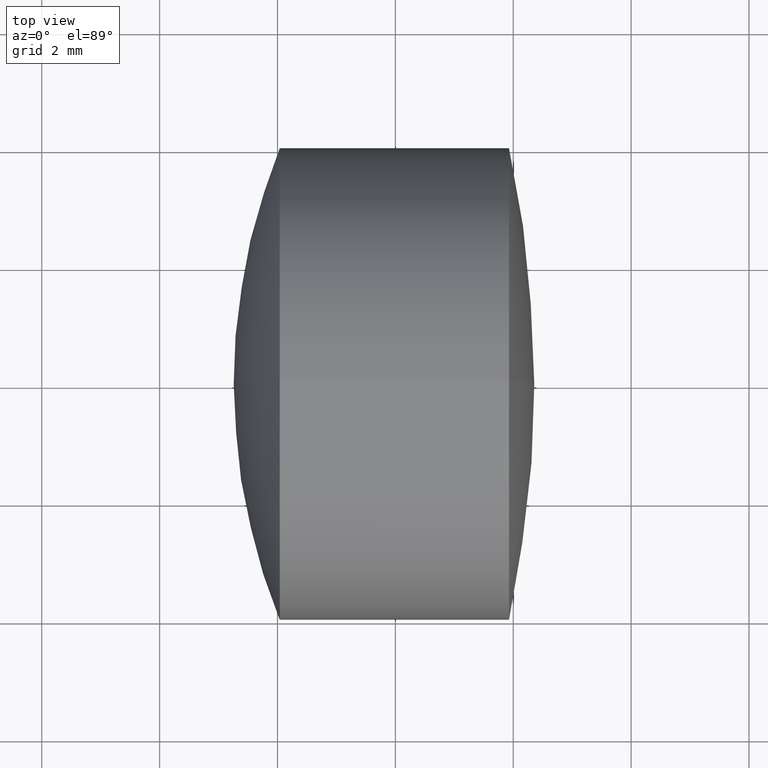
[diagram: clean part render]
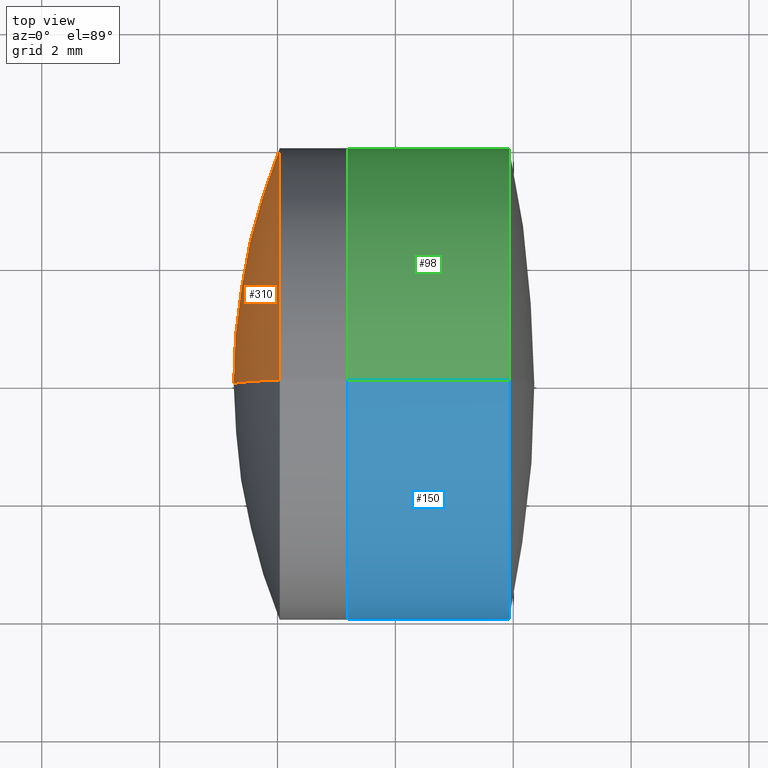
[diagram: same view with three faces highlighted in distinct colors, each labeled with its STEP entity id]
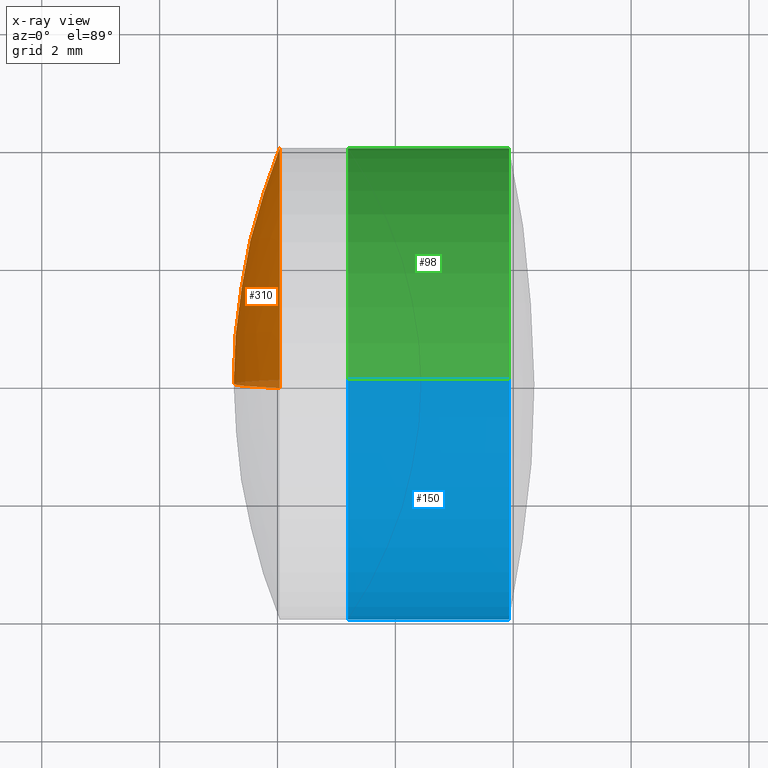
[diagram: x-ray of the same camera — body ghosted, the three highlighted faces saturated]
A machine part, top view with three faces highlighted in distinct colors.
The next image is the same camera in x-ray (body ghosted, the three faces saturated) — at least one of them is partly hidden behind the body in this view.
Their STEP definitions:

[orange] entity #310 — the highlighted spherical surface has radius 10.642 mm.
#7 = DIRECTION ( 'NONE',  ( 0.0000000000000000000, 0.0000000000000000000, 1.000000000000000000 ) ) ;
#9 = DIRECTION ( 'NONE',  ( -0.0000000000000000000, 1.000000000000000000, 1.224646799147353200E-016 ) ) ;
#13 = ORIENTED_EDGE ( 'NONE', *, *, #90, .F. ) ;
#16 = SPHERICAL_SURFACE ( 'NONE', #197, 10.64199999999999900 ) ;
#35 = CARTESIAN_POINT ( 'NONE',  ( 7.898824329195884200, 0.0000000000000000000, -4.193262327932864000E-018 ) ) ;
#38 = AXIS2_PLACEMENT_3D ( 'NONE', #41, #199, #7 ) ;
#41 = CARTESIAN_POINT ( 'NONE',  ( -1.962826851007154500, 0.0000000000000000000, 0.0000000000000000000 ) ) ;
#48 = CIRCLE ( 'NONE', #271, 10.64199999999999900 ) ;
#50 = VERTEX_POINT ( 'NONE', #301 ) ;
#77 = CARTESIAN_POINT ( 'NONE',  ( -1.962826851007154500, 0.0000000000000000000, 3.999999999999998200 ) ) ;
#80 = EDGE_CURVE ( 'NONE', #222, #50, #153, .T. ) ;
#84 = DIRECTION ( 'NONE',  ( 0.0000000000000000000, -1.224646799147353000E-016, 1.000000000000000000 ) ) ;
#87 = DIRECTION ( 'NONE',  ( 0.0000000000000000000, 1.000000000000000000, 0.0000000000000000000 ) ) ;
#90 = EDGE_CURVE ( 'NONE', #222, #315, #100, .T. ) ;
#100 = CIRCLE ( 'NONE', #346, 10.64199999999999900 ) ;
#139 = DIRECTION ( 'NONE',  ( 0.0000000000000000000, -1.000000000000000000, 0.0000000000000000000 ) ) ;
#153 = CIRCLE ( 'NONE', #38, 4.000000000000000000 ) ;
#163 = EDGE_LOOP ( 'NONE', ( #292, #198, #13 ) ) ;
#164 = FACE_OUTER_BOUND ( 'NONE', #163, .T. ) ;
#197 = AXIS2_PLACEMENT_3D ( 'NONE', #35, #87, #247 ) ;
#198 = ORIENTED_EDGE ( 'NONE', *, *, #265, .T. ) ;
#199 = DIRECTION ( 'NONE',  ( -1.000000000000000000, -0.0000000000000000000, -0.0000000000000000000 ) ) ;
#205 = CARTESIAN_POINT ( 'NONE',  ( -2.743175670804114000, 0.0000000000000000000, 6.474412994983736900E-016 ) ) ;
#222 = VERTEX_POINT ( 'NONE', #77 ) ;
#247 = DIRECTION ( 'NONE',  ( 0.0000000000000000000, 0.0000000000000000000, 1.000000000000000000 ) ) ;
#265 = EDGE_CURVE ( 'NONE', #50, #315, #48, .T. ) ;
#266 = CARTESIAN_POINT ( 'NONE',  ( 7.898824329195884200, 0.0000000000000000000, -4.193262327932864000E-018 ) ) ;
#271 = AXIS2_PLACEMENT_3D ( 'NONE', #266, #9, #84 ) ;
#292 = ORIENTED_EDGE ( 'NONE', *, *, #80, .T. ) ;
#301 = CARTESIAN_POINT ( 'NONE',  ( -1.962826851007154500, 4.898587196589411800E-016, -3.999999999999998200 ) ) ;
#310 = ADVANCED_FACE ( 'NONE', ( #164 ), #16, .T. ) ;
#315 = VERTEX_POINT ( 'NONE', #205 ) ;
#324 = CARTESIAN_POINT ( 'NONE',  ( 7.898824329195884200, 0.0000000000000000000, -4.193262327932864000E-018 ) ) ;
#328 = DIRECTION ( 'NONE',  ( 0.0000000000000000000, 0.0000000000000000000, -1.000000000000000000 ) ) ;
#346 = AXIS2_PLACEMENT_3D ( 'NONE', #324, #139, #328 ) ;

[blue] entity #150 — the highlighted cylindrical surface (partial cylindrical patch) has radius 4 mm, axis along (-1, -0, -0).
#2 = CARTESIAN_POINT ( 'NONE',  ( -0.5519199926577972300, 0.0000000000000000000, 0.0000000000000000000 ) ) ;
#3 = AXIS2_PLACEMENT_3D ( 'NONE', #2, #330, #309 ) ;
#4 = DIRECTION ( 'NONE',  ( -1.000000000000000000, -0.0000000000000000000, -0.0000000000000000000 ) ) ;
#14 = DIRECTION ( 'NONE',  ( 0.0000000000000000000, 0.0000000000000000000, 1.000000000000000000 ) ) ;
#15 = CARTESIAN_POINT ( 'NONE',  ( -0.5519199926577972300, 0.0000000000000000000, 4.000000000000000900 ) ) ;
#17 = EDGE_CURVE ( 'NONE', #118, #256, #261, .T. ) ;
#28 = EDGE_CURVE ( 'NONE', #207, #118, #103, .T. ) ;
#32 = VECTOR ( 'NONE', #297, 1000.000000000000000 ) ;
#33 = CARTESIAN_POINT ( 'NONE',  ( -0.5519199926577972300, 4.898587196589413800E-016, -4.000000000000000900 ) ) ;
#39 = LINE ( 'NONE', #33, #32 ) ;
#52 = FACE_OUTER_BOUND ( 'NONE', #160, .T. ) ;
#53 = AXIS2_PLACEMENT_3D ( 'NONE', #267, #190, #14 ) ;
#64 = CYLINDRICAL_SURFACE ( 'NONE', #3, 4.000000000000000900 ) ;
#66 = DIRECTION ( 'NONE',  ( -1.000000000000000000, -0.0000000000000000000, -0.0000000000000000000 ) ) ;
#94 = ORIENTED_EDGE ( 'NONE', *, *, #17, .T. ) ;
#103 = CIRCLE ( 'NONE', #146, 4.000000000000000000 ) ;
#118 = VERTEX_POINT ( 'NONE', #259 ) ;
#134 = EDGE_CURVE ( 'NONE', #207, #195, #39, .T. ) ;
#146 = AXIS2_PLACEMENT_3D ( 'NONE', #320, #66, #272 ) ;
#150 = ADVANCED_FACE ( 'NONE', ( #52 ), #64, .T. ) ;
#160 = EDGE_LOOP ( 'NONE', ( #248, #228, #94, #211 ) ) ;
#167 = EDGE_CURVE ( 'NONE', #195, #256, #176, .T. ) ;
#176 = CIRCLE ( 'NONE', #53, 4.000000000000001800 ) ;
#187 = CARTESIAN_POINT ( 'NONE',  ( 1.927975114913448800, 4.898587196589413800E-016, -4.000000000000000000 ) ) ;
#190 = DIRECTION ( 'NONE',  ( -1.000000000000000000, -0.0000000000000000000, -0.0000000000000000000 ) ) ;
#195 = VERTEX_POINT ( 'NONE', #274 ) ;
#207 = VERTEX_POINT ( 'NONE', #187 ) ;
#211 = ORIENTED_EDGE ( 'NONE', *, *, #167, .F. ) ;
#228 = ORIENTED_EDGE ( 'NONE', *, *, #28, .T. ) ;
#248 = ORIENTED_EDGE ( 'NONE', *, *, #134, .F. ) ;
#256 = VERTEX_POINT ( 'NONE', #333 ) ;
#259 = CARTESIAN_POINT ( 'NONE',  ( 1.927975114913448800, 0.0000000000000000000, 4.000000000000000000 ) ) ;
#261 = LINE ( 'NONE', #15, #344 ) ;
#267 = CARTESIAN_POINT ( 'NONE',  ( -0.8043704380087720600, 0.0000000000000000000, 0.0000000000000000000 ) ) ;
#272 = DIRECTION ( 'NONE',  ( 0.0000000000000000000, 0.0000000000000000000, 1.000000000000000000 ) ) ;
#274 = CARTESIAN_POINT ( 'NONE',  ( -0.8043704380087720600, 4.898587196589415800E-016, -4.000000000000001800 ) ) ;
#297 = DIRECTION ( 'NONE',  ( -1.000000000000000000, -0.0000000000000000000, -0.0000000000000000000 ) ) ;
#309 = DIRECTION ( 'NONE',  ( 0.0000000000000000000, 0.0000000000000000000, 1.000000000000000000 ) ) ;
#320 = CARTESIAN_POINT ( 'NONE',  ( 1.927975114913448800, 0.0000000000000000000, 0.0000000000000000000 ) ) ;
#330 = DIRECTION ( 'NONE',  ( -1.000000000000000000, -0.0000000000000000000, -0.0000000000000000000 ) ) ;
#333 = CARTESIAN_POINT ( 'NONE',  ( -0.8043704380087720600, 0.0000000000000000000, 4.000000000000001800 ) ) ;
#344 = VECTOR ( 'NONE', #4, 1000.000000000000000 ) ;

[green] entity #98 — the highlighted cylindrical surface (partial cylindrical patch) has radius 4 mm, axis along (-1, -0, -0).
#4 = DIRECTION ( 'NONE',  ( -1.000000000000000000, -0.0000000000000000000, -0.0000000000000000000 ) ) ;
#15 = CARTESIAN_POINT ( 'NONE',  ( -0.5519199926577972300, 0.0000000000000000000, 4.000000000000000900 ) ) ;
#17 = EDGE_CURVE ( 'NONE', #118, #256, #261, .T. ) ;
#22 = AXIS2_PLACEMENT_3D ( 'NONE', #40, #92, #162 ) ;
#25 = EDGE_CURVE ( 'NONE', #118, #207, #69, .T. ) ;
#32 = VECTOR ( 'NONE', #297, 1000.000000000000000 ) ;
#33 = CARTESIAN_POINT ( 'NONE',  ( -0.5519199926577972300, 4.898587196589413800E-016, -4.000000000000000900 ) ) ;
#39 = LINE ( 'NONE', #33, #32 ) ;
#40 = CARTESIAN_POINT ( 'NONE',  ( -0.5519199926577972300, 0.0000000000000000000, 0.0000000000000000000 ) ) ;
#69 = CIRCLE ( 'NONE', #289, 4.000000000000000000 ) ;
#71 = EDGE_LOOP ( 'NONE', ( #75, #327, #140, #194 ) ) ;
#75 = ORIENTED_EDGE ( 'NONE', *, *, #25, .T. ) ;
#78 = CYLINDRICAL_SURFACE ( 'NONE', #22, 4.000000000000000900 ) ;
#92 = DIRECTION ( 'NONE',  ( -1.000000000000000000, -0.0000000000000000000, -0.0000000000000000000 ) ) ;
#98 = ADVANCED_FACE ( 'NONE', ( #313 ), #78, .T. ) ;
#118 = VERTEX_POINT ( 'NONE', #259 ) ;
#130 = CARTESIAN_POINT ( 'NONE',  ( 1.927975114913448800, 0.0000000000000000000, 0.0000000000000000000 ) ) ;
#134 = EDGE_CURVE ( 'NONE', #207, #195, #39, .T. ) ;
#140 = ORIENTED_EDGE ( 'NONE', *, *, #180, .F. ) ;
#162 = DIRECTION ( 'NONE',  ( 0.0000000000000000000, 0.0000000000000000000, 1.000000000000000000 ) ) ;
#180 = EDGE_CURVE ( 'NONE', #256, #195, #319, .T. ) ;
#187 = CARTESIAN_POINT ( 'NONE',  ( 1.927975114913448800, 4.898587196589413800E-016, -4.000000000000000000 ) ) ;
#188 = DIRECTION ( 'NONE',  ( 0.0000000000000000000, 0.0000000000000000000, 1.000000000000000000 ) ) ;
#194 = ORIENTED_EDGE ( 'NONE', *, *, #17, .F. ) ;
#195 = VERTEX_POINT ( 'NONE', #274 ) ;
#207 = VERTEX_POINT ( 'NONE', #187 ) ;
#220 = DIRECTION ( 'NONE',  ( -1.000000000000000000, -0.0000000000000000000, -0.0000000000000000000 ) ) ;
#242 = CARTESIAN_POINT ( 'NONE',  ( -0.8043704380087720600, 0.0000000000000000000, 0.0000000000000000000 ) ) ;
#256 = VERTEX_POINT ( 'NONE', #333 ) ;
#259 = CARTESIAN_POINT ( 'NONE',  ( 1.927975114913448800, 0.0000000000000000000, 4.000000000000000000 ) ) ;
#261 = LINE ( 'NONE', #15, #344 ) ;
#274 = CARTESIAN_POINT ( 'NONE',  ( -0.8043704380087720600, 4.898587196589415800E-016, -4.000000000000001800 ) ) ;
#289 = AXIS2_PLACEMENT_3D ( 'NONE', #130, #290, #188 ) ;
#290 = DIRECTION ( 'NONE',  ( -1.000000000000000000, -0.0000000000000000000, -0.0000000000000000000 ) ) ;
#297 = DIRECTION ( 'NONE',  ( -1.000000000000000000, -0.0000000000000000000, -0.0000000000000000000 ) ) ;
#299 = AXIS2_PLACEMENT_3D ( 'NONE', #242, #220, #306 ) ;
#306 = DIRECTION ( 'NONE',  ( 0.0000000000000000000, 0.0000000000000000000, 1.000000000000000000 ) ) ;
#313 = FACE_OUTER_BOUND ( 'NONE', #71, .T. ) ;
#319 = CIRCLE ( 'NONE', #299, 4.000000000000001800 ) ;
#327 = ORIENTED_EDGE ( 'NONE', *, *, #134, .T. ) ;
#333 = CARTESIAN_POINT ( 'NONE',  ( -0.8043704380087720600, 0.0000000000000000000, 4.000000000000001800 ) ) ;
#344 = VECTOR ( 'NONE', #4, 1000.000000000000000 ) ;